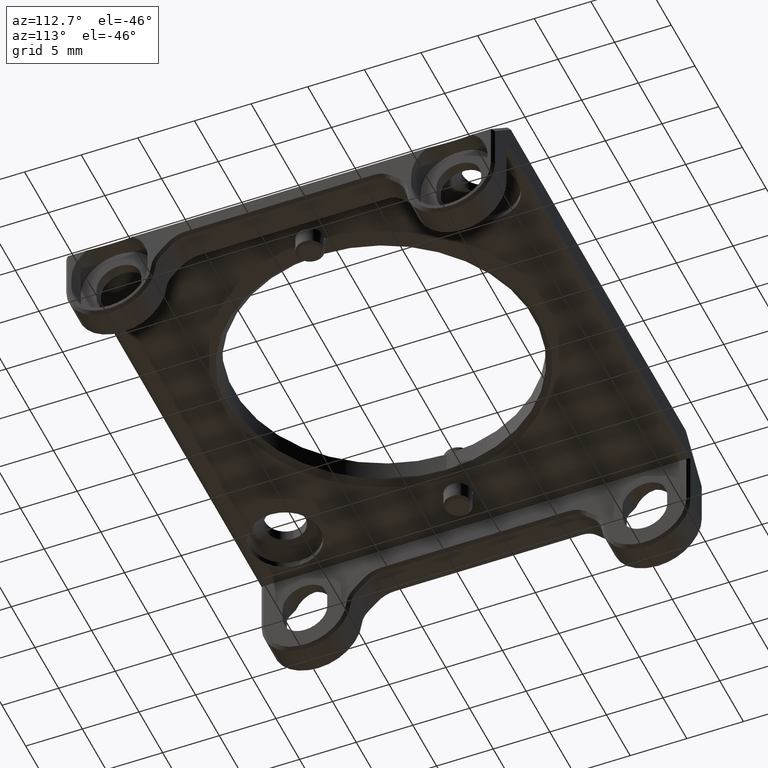
[diagram: clean part render]
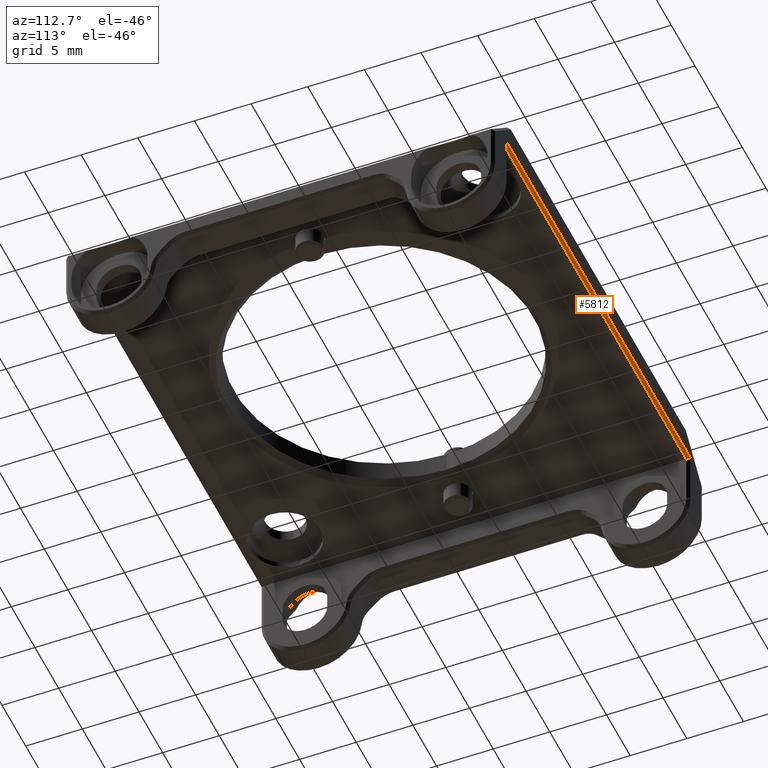
[diagram: same view with one face highlighted and labeled with its STEP entity id]
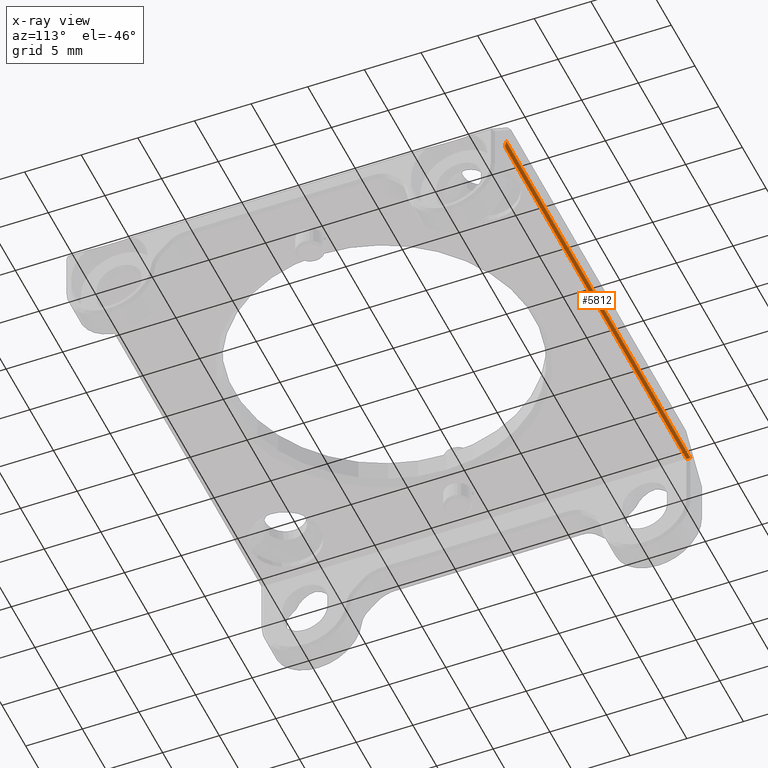
[diagram: x-ray of the same camera — body ghosted, the highlighted face saturated]
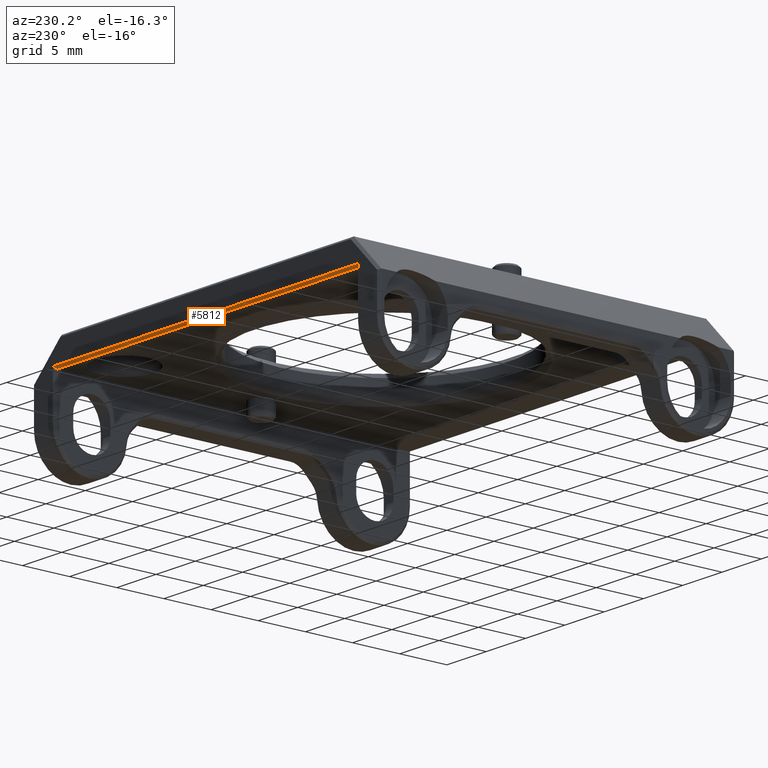
[diagram: same view with one face highlighted and labeled with its STEP entity id]
A machine part, auxiliary view. The second image highlights one B-rep face of the part: STEP entity #5812.
The next image is the same camera in x-ray: the body ghosted, the highlighted face saturated — about 0% of this face is hidden behind the body in this view.
A second angle (auxiliary view) of the same face is appended — the face is thin or edge-on in the first view.
In plain terms, the highlighted planar face has unit normal (0, -0.7071, 0.7071).
Its self-contained STEP definition (entity closure, byte-faithful):
#503 = VERTEX_POINT ( 'NONE', #1767 ) ;
#1189 = LINE ( 'NONE', #1823, #5222 ) ;
#1745 = DIRECTION ( 'NONE',  ( -0.5773502691896257311, -0.5773502691896257311, -0.5773502691896257311 ) ) ;
#1767 = CARTESIAN_POINT ( 'NONE',  ( -19.17500000000000071, 18.67500000000000071, 7.246847433954463752E-15 ) ) ;
#1797 = DIRECTION ( 'NONE',  ( 0.000000000000000000, -0.7071067811865475727, 0.7071067811865475727 ) ) ;
#1823 = CARTESIAN_POINT ( 'NONE',  ( 12.95000000000000107, 12.44999999999999929, -6.224999999999993427 ) ) ;
#2179 = CARTESIAN_POINT ( 'NONE',  ( 0.000000000000000000, 18.92500000000000071, 0.2500000000000074940 ) ) ;
#2239 = CARTESIAN_POINT ( 'NONE',  ( -19.34166666666665790, 18.84166666666666501, 0.1666666666666732077 ) ) ;
#2346 = CARTESIAN_POINT ( 'NONE',  ( 19.17500000000000071, 18.67500000000000071, 7.246847433954463752E-15 ) ) ;
#2584 = VECTOR ( 'NONE', #3364, 1000.000000000000000 ) ;
#2937 = LINE ( 'NONE', #2239, #3118 ) ;
#3005 = DIRECTION ( 'NONE',  ( -1.000000000000000000, 0.000000000000000000, 0.000000000000000000 ) ) ;
#3061 = ORIENTED_EDGE ( 'NONE', *, *, #6135, .F. ) ;
#3118 = VECTOR ( 'NONE', #3971, 999.9999999999998863 ) ;
#3364 = DIRECTION ( 'NONE',  ( 1.000000000000000000, 0.000000000000000000, 0.000000000000000000 ) ) ;
#3538 = CARTESIAN_POINT ( 'NONE',  ( 0.000000000000000000, 18.92500000000000071, 0.2500000000000074940 ) ) ;
#3561 = CARTESIAN_POINT ( 'NONE',  ( 19.17500000000000071, 18.67500000000000071, 7.246847433954463752E-15 ) ) ;
#3971 = DIRECTION ( 'NONE',  ( 0.5773502691896366112, -0.5773502691896204020, -0.5773502691896204020 ) ) ;
#4302 = ORIENTED_EDGE ( 'NONE', *, *, #5791, .F. ) ;
#4319 = VERTEX_POINT ( 'NONE', #6151 ) ;
#4432 = VECTOR ( 'NONE', #6806, 1000.000000000000000 ) ;
#4621 = CARTESIAN_POINT ( 'NONE',  ( -19.42499999999999361, 18.92500000000000071, 0.2500000000000074940 ) ) ;
#4969 = EDGE_CURVE ( 'NONE', #4319, #5852, #1189, .T. ) ;
#5093 = ORIENTED_EDGE ( 'NONE', *, *, #7384, .F. ) ;
#5222 = VECTOR ( 'NONE', #1745, 999.9999999999998863 ) ;
#5282 = PLANE ( 'NONE',  #5786 ) ;
#5663 = VERTEX_POINT ( 'NONE', #4621 ) ;
#5786 = AXIS2_PLACEMENT_3D ( 'NONE', #3538, #1797, #3005 ) ;
#5791 = EDGE_CURVE ( 'NONE', #503, #5852, #7155, .T. ) ;
#5812 = ADVANCED_FACE ( 'NONE', ( #6607 ), #5282, .F. ) ;
#5852 = VERTEX_POINT ( 'NONE', #3561 ) ;
#6135 = EDGE_CURVE ( 'NONE', #5663, #503, #2937, .T. ) ;
#6151 = CARTESIAN_POINT ( 'NONE',  ( 19.42500000000000071, 18.92500000000000071, 0.2500000000000074940 ) ) ;
#6499 = LINE ( 'NONE', #2179, #4432 ) ;
#6607 = FACE_OUTER_BOUND ( 'NONE', #7404, .T. ) ;
#6806 = DIRECTION ( 'NONE',  ( -1.000000000000000000, 0.000000000000000000, 0.000000000000000000 ) ) ;
#7020 = ORIENTED_EDGE ( 'NONE', *, *, #4969, .T. ) ;
#7155 = LINE ( 'NONE', #2346, #2584 ) ;
#7384 = EDGE_CURVE ( 'NONE', #4319, #5663, #6499, .T. ) ;
#7404 = EDGE_LOOP ( 'NONE', ( #7020, #4302, #3061, #5093 ) ) ;